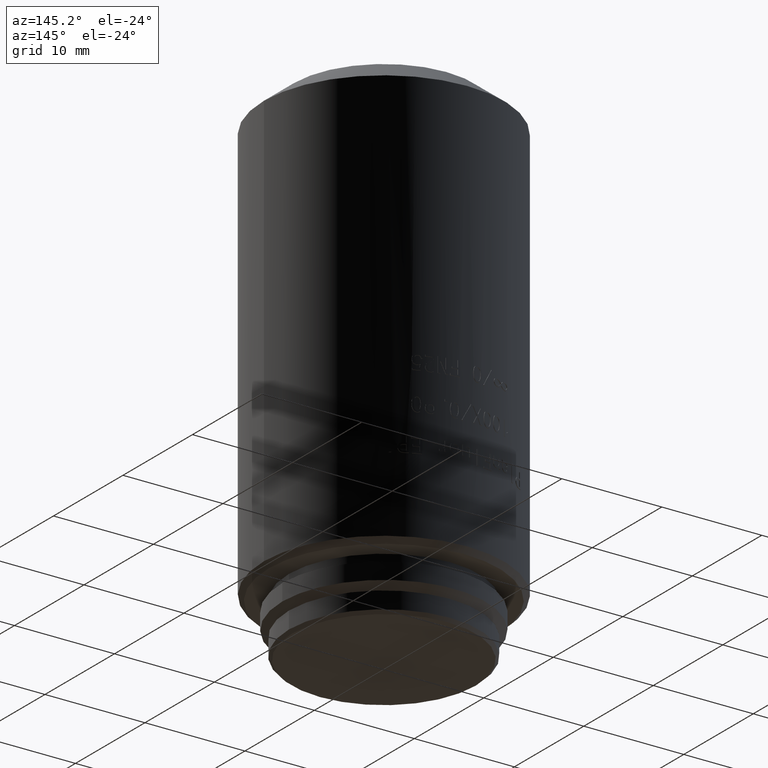
[diagram: clean part render]
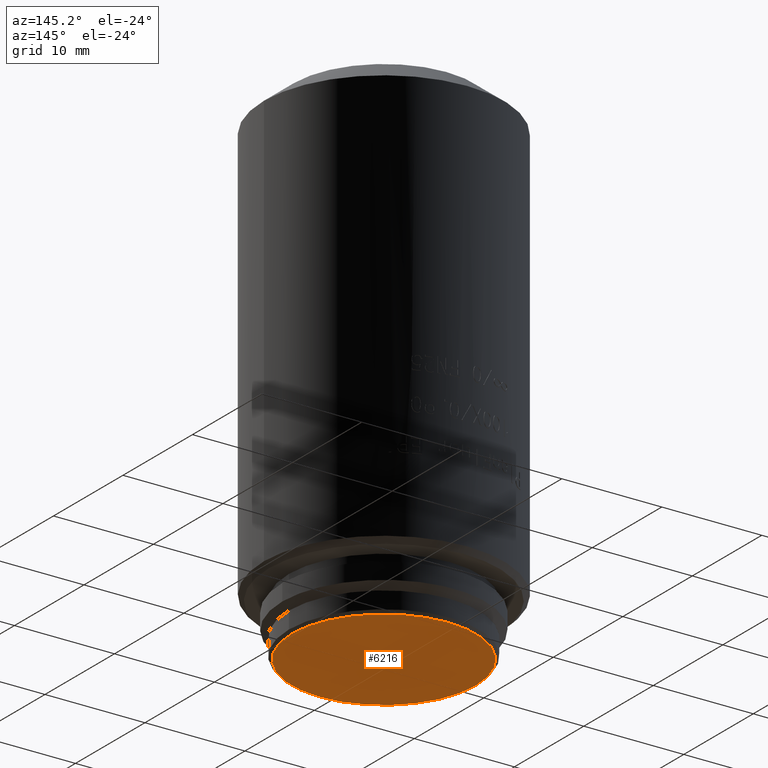
[diagram: same view with one face highlighted and labeled with its STEP entity id]
A machine part, auxiliary view. The second image highlights one B-rep face of the part: STEP entity #6216.
In plain terms, the highlighted planar face has unit normal (0, 0, 1).
Its self-contained STEP definition (entity closure, byte-faithful):
#868 = CARTESIAN_POINT ( 'NONE',  ( -9.199999999999999289, 1.145044757202775647E-15, 0.000000000000000000 ) ) ;
#2878 = DIRECTION ( 'NONE',  ( 1.000000000000000000, 0.000000000000000000, 0.000000000000000000 ) ) ;
#3266 = CARTESIAN_POINT ( 'NONE',  ( 0.000000000000000000, 0.000000000000000000, 0.000000000000000000 ) ) ;
#4127 = CARTESIAN_POINT ( 'NONE',  ( 0.000000000000000000, 0.000000000000000000, 0.000000000000000000 ) ) ;
#5554 = DIRECTION ( 'NONE',  ( 1.000000000000000000, 0.000000000000000000, 0.000000000000000000 ) ) ;
#6216 = ADVANCED_FACE ( 'NONE', ( #18598 ), #24858, .F. ) ;
#9791 = AXIS2_PLACEMENT_3D ( 'NONE', #4127, #10476, #15955 ) ;
#10476 = DIRECTION ( 'NONE',  ( 0.000000000000000000, 0.000000000000000000, -1.000000000000000000 ) ) ;
#11188 = AXIS2_PLACEMENT_3D ( 'NONE', #23396, #15952, #5554 ) ;
#12881 = DIRECTION ( 'NONE',  ( 0.000000000000000000, 0.000000000000000000, 1.000000000000000000 ) ) ;
#13675 = CARTESIAN_POINT ( 'NONE',  ( 9.199999999999999289, 0.000000000000000000, 0.000000000000000000 ) ) ;
#13702 = CIRCLE ( 'NONE', #11188, 9.199999999999999289 ) ;
#15580 = AXIS2_PLACEMENT_3D ( 'NONE', #3266, #12881, #2878 ) ;
#15952 = DIRECTION ( 'NONE',  ( 0.000000000000000000, 0.000000000000000000, -1.000000000000000000 ) ) ;
#15955 = DIRECTION ( 'NONE',  ( 1.000000000000000000, 0.000000000000000000, 0.000000000000000000 ) ) ;
#16359 = EDGE_CURVE ( 'NONE', #21790, #18946, #20993, .T. ) ;
#16686 = ORIENTED_EDGE ( 'NONE', *, *, #16359, .T. ) ;
#18598 = FACE_OUTER_BOUND ( 'NONE', #22892, .T. ) ;
#18946 = VERTEX_POINT ( 'NONE', #13675 ) ;
#20634 = EDGE_CURVE ( 'NONE', #18946, #21790, #13702, .T. ) ;
#20993 = CIRCLE ( 'NONE', #9791, 9.199999999999999289 ) ;
#21790 = VERTEX_POINT ( 'NONE', #868 ) ;
#22892 = EDGE_LOOP ( 'NONE', ( #25585, #16686 ) ) ;
#23396 = CARTESIAN_POINT ( 'NONE',  ( 0.000000000000000000, 0.000000000000000000, 0.000000000000000000 ) ) ;
#24858 = PLANE ( 'NONE',  #15580 ) ;
#25585 = ORIENTED_EDGE ( 'NONE', *, *, #20634, .T. ) ;